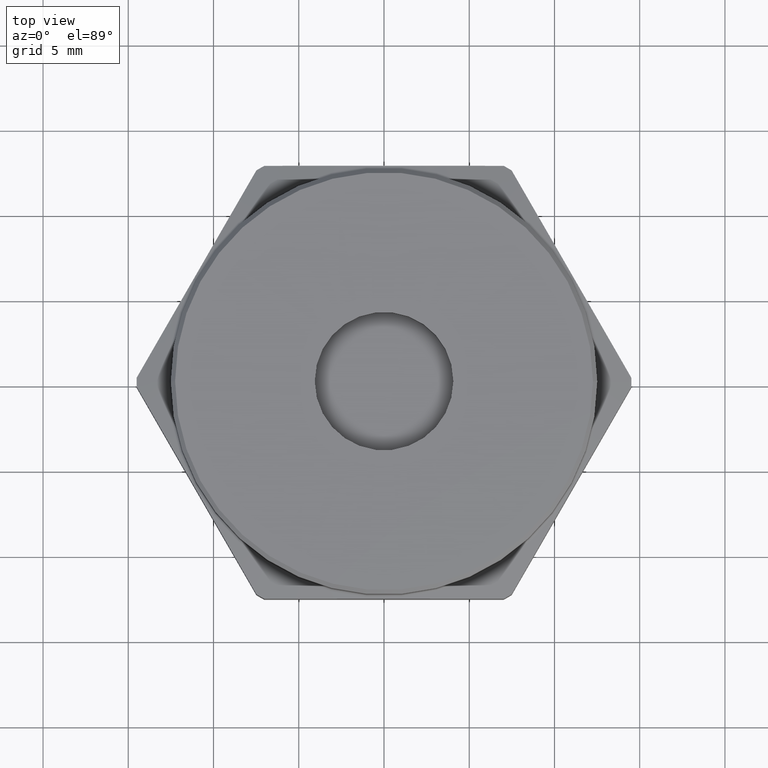
[diagram: clean part render]
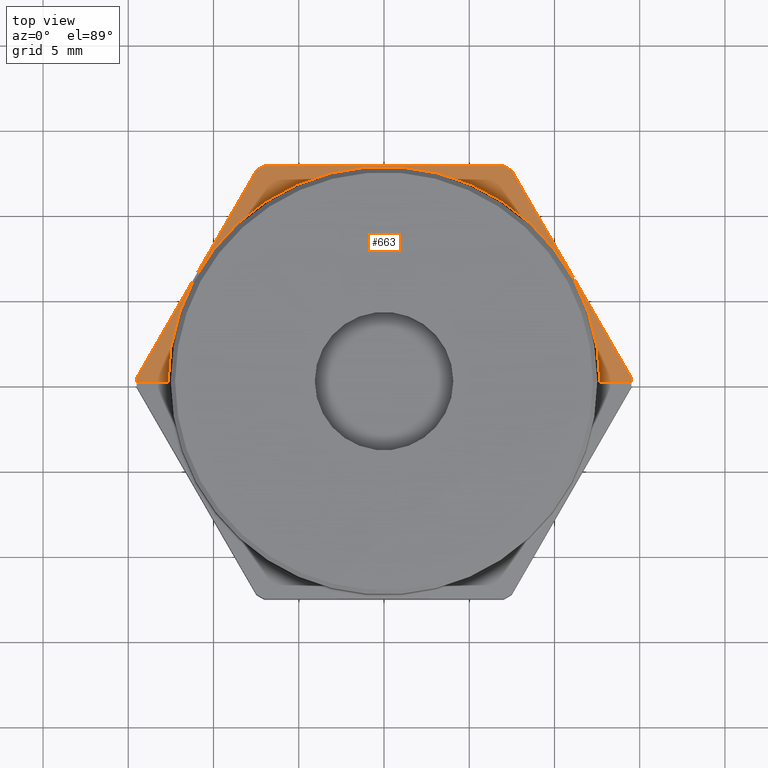
[diagram: same view with one face highlighted and labeled with its STEP entity id]
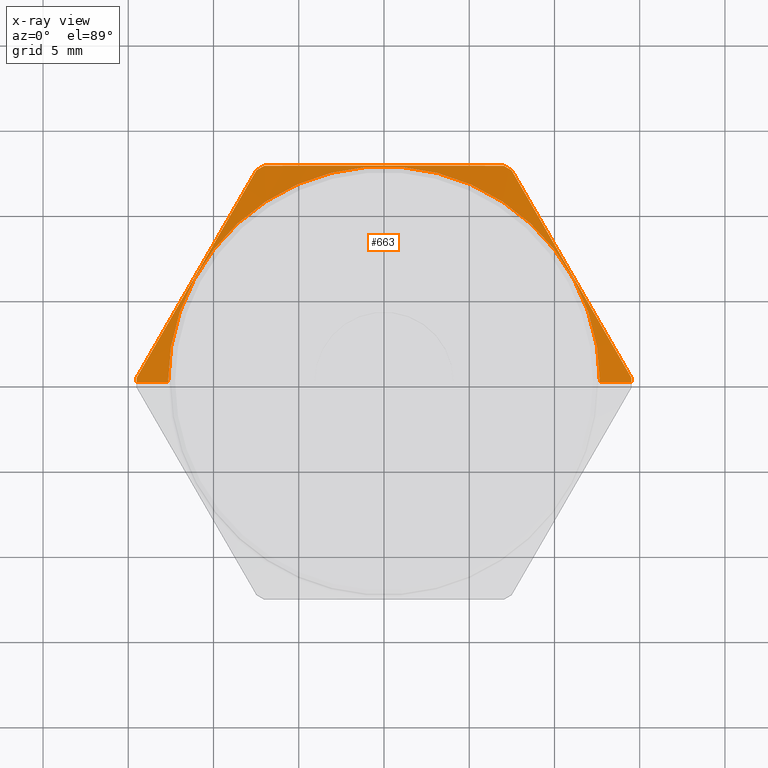
[diagram: x-ray of the same camera — body ghosted, the highlighted face saturated]
A machine part, top view. The second image highlights one B-rep face of the part: STEP entity #663.
The next image is the same camera in x-ray: the body ghosted, the highlighted face saturated — about 0% of this face is hidden behind the body in this view.
In plain terms, the highlighted conical surface has half-angle 78 deg.
Its self-contained STEP definition (entity closure, byte-faithful):
#74 = FACE_OUTER_BOUND ( 'NONE', #710, .T. ) ;
#82 = CONICAL_SURFACE ( 'NONE', #443, 0.5713502691896256100, 1.361356816555576500 ) ;
#147 = ORIENTED_EDGE ( 'NONE', *, *, #2647, .T. ) ;
#148 = ORIENTED_EDGE ( 'NONE', *, *, #2648, .T. ) ;
#149 = ORIENTED_EDGE ( 'NONE', *, *, #2649, .F. ) ;
#150 = ORIENTED_EDGE ( 'NONE', *, *, #2650, .T. ) ;
#220 = CIRCLE ( 'NONE', #495, 0.4988367064734580100 ) ;
#221 = CIRCLE ( 'NONE', #496, 0.5713502691896256100 ) ;
#222 = LINE ( 'NONE', #2025, #223 ) ;
#223 = VECTOR ( 'NONE', #2023, 39.37007874015748100 ) ;
#224 = LINE ( 'NONE', #2067, #230 ) ;
#225 = CIRCLE ( 'NONE', #497, 0.5713502691896256100 ) ;
#227 = CIRCLE ( 'NONE', #498, 0.5713502691896256100 ) ;
#228 = CIRCLE ( 'NONE', #499, 0.5713502691896256100 ) ;
#230 = VECTOR ( 'NONE', #2024, 39.37007874015748900 ) ;
#315 = VERTEX_POINT ( 'NONE', #2837 ) ;
#324 = VERTEX_POINT ( 'NONE', #3094 ) ;
#327 = VERTEX_POINT ( 'NONE', #3091 ) ;
#332 = VERTEX_POINT ( 'NONE', #3086 ) ;
#333 = VERTEX_POINT ( 'NONE', #3085 ) ;
#381 = VERTEX_POINT ( 'NONE', #3062 ) ;
#383 = VERTEX_POINT ( 'NONE', #3060 ) ;
#384 = VERTEX_POINT ( 'NONE', #3059 ) ;
#385 = VERTEX_POINT ( 'NONE', #3058 ) ;
#386 = VERTEX_POINT ( 'NONE', #3057 ) ;
#411 = ORIENTED_EDGE ( 'NONE', *, *, #2651, .F. ) ;
#412 = ORIENTED_EDGE ( 'NONE', *, *, #2652, .T. ) ;
#413 = ORIENTED_EDGE ( 'NONE', *, *, #2653, .F. ) ;
#414 = ORIENTED_EDGE ( 'NONE', *, *, #2654, .T. ) ;
#415 = ORIENTED_EDGE ( 'NONE', *, *, #2655, .F. ) ;
#416 = ORIENTED_EDGE ( 'NONE', *, *, #2656, .F. ) ;
#443 = AXIS2_PLACEMENT_3D ( 'NONE', #1406, #1407, #1405 ) ;
#495 = AXIS2_PLACEMENT_3D ( 'NONE', #2026, #2027, #2028 ) ;
#496 = AXIS2_PLACEMENT_3D ( 'NONE', #2031, #2032, #2033 ) ;
#497 = AXIS2_PLACEMENT_3D ( 'NONE', #2043, #2044, #2045 ) ;
#498 = AXIS2_PLACEMENT_3D ( 'NONE', #2056, #2057, #2058 ) ;
#499 = AXIS2_PLACEMENT_3D ( 'NONE', #2068, #2069, #2070 ) ;
#554 = B_SPLINE_CURVE_WITH_KNOTS ( 'NONE', 3,
 ( #2030, #2029, #2034, #2035, #2036, #2037, #2038, #2039, #2040 ),
 .UNSPECIFIED., .F., .F.,
 ( 4, 2, 1, 2, 4 ),
 ( 1.944233093215034600E-006, 0.003513238848234784200, 0.007024533463376353300, 0.01053582807851792200, 0.01404712269365949100 ),
 .UNSPECIFIED. ) ;
#555 = B_SPLINE_CURVE_WITH_KNOTS ( 'NONE', 3,
 ( #2042, #2041, #2046, #2047, #2048, #2049, #2050, #2051, #2052, #2053 ),
 .UNSPECIFIED., .F., .F.,
 ( 4, 2, 2, 2, 4 ),
 ( 0.02802711774646592400, 0.03154885258410232400, 0.03507058742173872800, 0.03859232225937511700, 0.04211405709701152000 ),
 .UNSPECIFIED. ) ;
#556 = B_SPLINE_CURVE_WITH_KNOTS ( 'NONE', 3,
 ( #2055, #2054, #2059, #2060, #2061, #2062, #2063, #2064, #2065 ),
 .UNSPECIFIED., .F., .F.,
 ( 4, 2, 1, 2, 4 ),
 ( 1.944233093237140000E-006, 0.003513238848234805900, 0.007024533463376374100, 0.01053582807851794400, 0.01404712269365951200 ),
 .UNSPECIFIED. ) ;
#663 = ADVANCED_FACE ( 'NONE', ( #74 ), #82, .T. ) ;
#710 = EDGE_LOOP ( 'NONE', ( #147, #148, #149, #150, #411, #412, #413, #414, #415, #416 ) ) ;
#1405 = DIRECTION ( 'NONE',  ( -1.000000000000000000, 0.0000000000000000000, 1.195347294374683000E-016 ) ) ;
#1406 = CARTESIAN_POINT ( 'NONE',  ( 1.876647014720462100E-017, 0.0000000000000000000, 0.1532398578942975300 ) ) ;
#1407 = DIRECTION ( 'NONE',  ( -1.224646799147349800E-016, -0.0000000000000000000, -1.000000000000000000 ) ) ;
#2023 = DIRECTION ( 'NONE',  ( 0.9781476007338054700, 1.197885328332318200E-016, -0.2079116908177600400 ) ) ;
#2024 = DIRECTION ( 'NONE',  ( -0.9781476007338054700, 0.0000000000000000000, -0.2079116908177598100 ) ) ;
#2025 = CARTESIAN_POINT ( 'NONE',  ( 0.5713502691896256100, 6.997022783550536800E-017, 0.1532398578942974500 ) ) ;
#2026 = CARTESIAN_POINT ( 'NONE',  ( 2.065404686224142200E-017, 0.0000000000000000000, 0.1686530914596896500 ) ) ;
#2027 = DIRECTION ( 'NONE',  ( -6.123233995736748800E-017, -0.0000000000000000000, -1.000000000000000000 ) ) ;
#2028 = DIRECTION ( 'NONE',  ( 1.000000000000000000, 0.0000000000000000000, -6.845546744587897500E-017 ) ) ;
#2029 = CARTESIAN_POINT ( 'NONE',  ( 0.5482126564572312700, 0.05046782566377294700, 0.1579795259698086300 ) ) ;
#2030 = CARTESIAN_POINT ( 'NONE',  ( 0.5712526473702339600, 0.01056139079652753200, 0.1532398578942974500 ) ) ;
#2031 = CARTESIAN_POINT ( 'NONE',  ( 1.876647014720462100E-017, 0.0000000000000000000, 0.1532398578942975300 ) ) ;
#2032 = DIRECTION ( 'NONE',  ( -1.224646799147349800E-016, -0.0000000000000000000, -1.000000000000000000 ) ) ;
#2033 = DIRECTION ( 'NONE',  ( -1.000000000000000000, 0.0000000000000000000, 1.195347294374683000E-016 ) ) ;
#2034 = CARTESIAN_POINT ( 'NONE',  ( 0.5251726655442290300, 0.09037426053101838000, 0.1618085153259697100 ) ) ;
#2035 = CARTESIAN_POINT ( 'NONE',  ( 0.4790926837182241100, 0.1701871302655092700, 0.1670286922057679100 ) ) ;
#2036 = CARTESIAN_POINT ( 'NONE',  ( 0.4330127018922191300, 0.2500000000000000600, 0.1697829593691817500 ) ) ;
#2037 = CARTESIAN_POINT ( 'NONE',  ( 0.3869327200662144300, 0.3298128697344909800, 0.1670286922057679900 ) ) ;
#2038 = CARTESIAN_POINT ( 'NONE',  ( 0.3408527382402096200, 0.4096257394689818400, 0.1618085153259697100 ) ) ;
#2039 = CARTESIAN_POINT ( 'NONE',  ( 0.3178127473272071600, 0.4495321743362272700, 0.1579795259698086900 ) ) ;
#2040 = CARTESIAN_POINT ( 'NONE',  ( 0.2947727564142047500, 0.4894386092034727600, 0.1532398578942974800 ) ) ;
#2041 = CARTESIAN_POINT ( 'NONE',  ( 0.2304983317507587100, 0.5000000000000001100, 0.1579694024729035900 ) ) ;
#2042 = CARTESIAN_POINT ( 'NONE',  ( 0.2764798909560290400, 0.5000000000000000000, 0.1532398578942974800 ) ) ;
#2043 = CARTESIAN_POINT ( 'NONE',  ( 1.876647014720462100E-017, 0.0000000000000000000, 0.1532398578942975300 ) ) ;
#2044 = DIRECTION ( 'NONE',  ( -1.224646799147349800E-016, -0.0000000000000000000, -1.000000000000000000 ) ) ;
#2045 = DIRECTION ( 'NONE',  ( -1.000000000000000000, 0.0000000000000000000, 1.195347294374683000E-016 ) ) ;
#2046 = CARTESIAN_POINT ( 'NONE',  ( 0.1844964698020088200, 0.5000000000000001100, 0.1617945219461360800 ) ) ;
#2047 = CARTESIAN_POINT ( 'NONE',  ( 0.09243824480201577600, 0.5000000000000000000, 0.1670169035236831700 ) ) ;
#2048 = CARTESIAN_POINT ( 'NONE',  ( 0.04638156483337269700, 0.4999999999999999400, 0.1684000479274467800 ) ) ;
#2049 = CARTESIAN_POINT ( 'NONE',  ( -0.04579363481263568100, 0.4999999999999999400, 0.1684115669111739300 ) ) ;
#2050 = CARTESIAN_POINT ( 'NONE',  ( -0.09191216363009077600, 0.5000000000000001100, 0.1670395343280967600 ) ) ;
#2051 = CARTESIAN_POINT ( 'NONE',  ( -0.1842048312148131300, 0.5000000000000001100, 0.1618182160375232500 ) ) ;
#2052 = CARTESIAN_POINT ( 'NONE',  ( -0.2304247505594924400, 0.5000000000000001100, 0.1579769708444477300 ) ) ;
#2053 = CARTESIAN_POINT ( 'NONE',  ( -0.2764798909560289800, 0.5000000000000000000, 0.1532398578942975600 ) ) ;
#2054 = CARTESIAN_POINT ( 'NONE',  ( -0.3178127473272076000, 0.4495321743362270500, 0.1579795259698088000 ) ) ;
#2055 = CARTESIAN_POINT ( 'NONE',  ( -0.2947727564142051400, 0.4894386092034723700, 0.1532398578942975600 ) ) ;
#2056 = CARTESIAN_POINT ( 'NONE',  ( 1.876647014720462100E-017, 0.0000000000000000000, 0.1532398578942975300 ) ) ;
#2057 = DIRECTION ( 'NONE',  ( -1.224646799147349800E-016, -0.0000000000000000000, -1.000000000000000000 ) ) ;
#2058 = DIRECTION ( 'NONE',  ( -1.000000000000000000, 0.0000000000000000000, 1.195347294374683000E-016 ) ) ;
#2059 = CARTESIAN_POINT ( 'NONE',  ( -0.3408527382402100100, 0.4096257394689814500, 0.1618085153259697700 ) ) ;
#2060 = CARTESIAN_POINT ( 'NONE',  ( -0.3869327200662148200, 0.3298128697344906400, 0.1670286922057680200 ) ) ;
#2061 = CARTESIAN_POINT ( 'NONE',  ( -0.4330127018922195800, 0.2499999999999996900, 0.1697829593691818600 ) ) ;
#2062 = CARTESIAN_POINT ( 'NONE',  ( -0.4790926837182242800, 0.1701871302655087700, 0.1670286922057680800 ) ) ;
#2063 = CARTESIAN_POINT ( 'NONE',  ( -0.5251726655442290300, 0.09037426053101785300, 0.1618085153259698500 ) ) ;
#2064 = CARTESIAN_POINT ( 'NONE',  ( -0.5482126564572313800, 0.05046782566377237100, 0.1579795259698088000 ) ) ;
#2065 = CARTESIAN_POINT ( 'NONE',  ( -0.5712526473702338500, 0.01056139079652698400, 0.1532398578942975900 ) ) ;
#2067 = CARTESIAN_POINT ( 'NONE',  ( -0.5713502691896256100, 0.0000000000000000000, 0.1532398578942975900 ) ) ;
#2068 = CARTESIAN_POINT ( 'NONE',  ( 1.876647014720462100E-017, 0.0000000000000000000, 0.1532398578942975300 ) ) ;
#2069 = DIRECTION ( 'NONE',  ( -1.224646799147349800E-016, -0.0000000000000000000, -1.000000000000000000 ) ) ;
#2070 = DIRECTION ( 'NONE',  ( -1.000000000000000000, 0.0000000000000000000, 1.195347294374683000E-016 ) ) ;
#2647 = EDGE_CURVE ( 'NONE', #332, #333, #220, .T. ) ;
#2648 = EDGE_CURVE ( 'NONE', #333, #327, #222, .T. ) ;
#2649 = EDGE_CURVE ( 'NONE', #324, #327, #221, .T. ) ;
#2650 = EDGE_CURVE ( 'NONE', #324, #385, #554, .T. ) ;
#2651 = EDGE_CURVE ( 'NONE', #315, #385, #225, .T. ) ;
#2652 = EDGE_CURVE ( 'NONE', #315, #383, #555, .T. ) ;
#2653 = EDGE_CURVE ( 'NONE', #386, #383, #227, .T. ) ;
#2654 = EDGE_CURVE ( 'NONE', #386, #381, #556, .T. ) ;
#2655 = EDGE_CURVE ( 'NONE', #384, #381, #228, .T. ) ;
#2656 = EDGE_CURVE ( 'NONE', #332, #384, #224, .T. ) ;
#2837 = CARTESIAN_POINT ( 'NONE',  ( 0.2764798909560290400, 0.5000000000000000000, 0.1532398578942974800 ) ) ;
#3057 = CARTESIAN_POINT ( 'NONE',  ( -0.2947727564142051400, 0.4894386092034723700, 0.1532398578942975600 ) ) ;
#3058 = CARTESIAN_POINT ( 'NONE',  ( 0.2947727564142047500, 0.4894386092034727600, 0.1532398578942974800 ) ) ;
#3059 = CARTESIAN_POINT ( 'NONE',  ( -0.5713502691896256100, 0.0000000000000000000, 0.1532398578942975900 ) ) ;
#3060 = CARTESIAN_POINT ( 'NONE',  ( -0.2764798909560289800, 0.5000000000000000000, 0.1532398578942975600 ) ) ;
#3062 = CARTESIAN_POINT ( 'NONE',  ( -0.5712526473702338500, 0.01056139079652698400, 0.1532398578942975900 ) ) ;
#3085 = CARTESIAN_POINT ( 'NONE',  ( 0.4988367064734579000, 6.108987758799279500E-017, 0.1686530914596896200 ) ) ;
#3086 = CARTESIAN_POINT ( 'NONE',  ( -0.4988367064734581800, 0.0000000000000000000, 0.1686530914596897100 ) ) ;
#3091 = CARTESIAN_POINT ( 'NONE',  ( 0.5713502691896256100, 6.997022783550536800E-017, 0.1532398578942974500 ) ) ;
#3094 = CARTESIAN_POINT ( 'NONE',  ( 0.5712526473702339600, 0.01056139079652753200, 0.1532398578942974500 ) ) ;